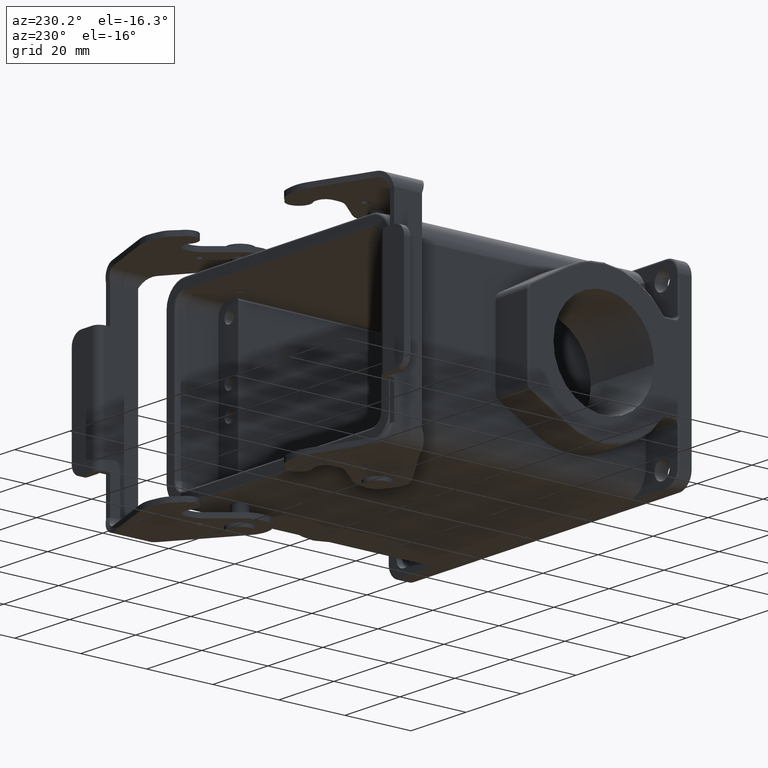
[diagram: clean part render]
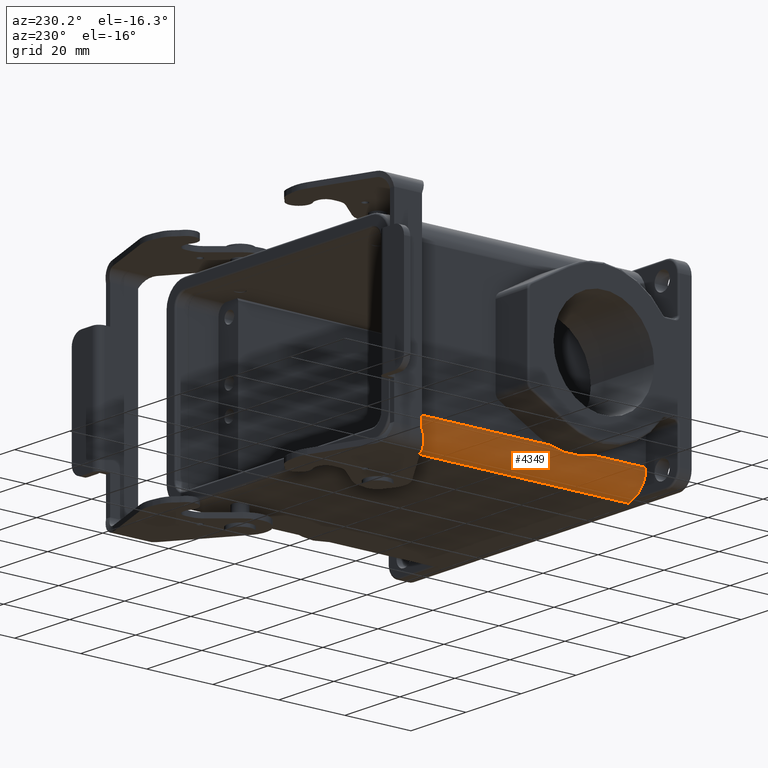
[diagram: same view with one face highlighted and labeled with its STEP entity id]
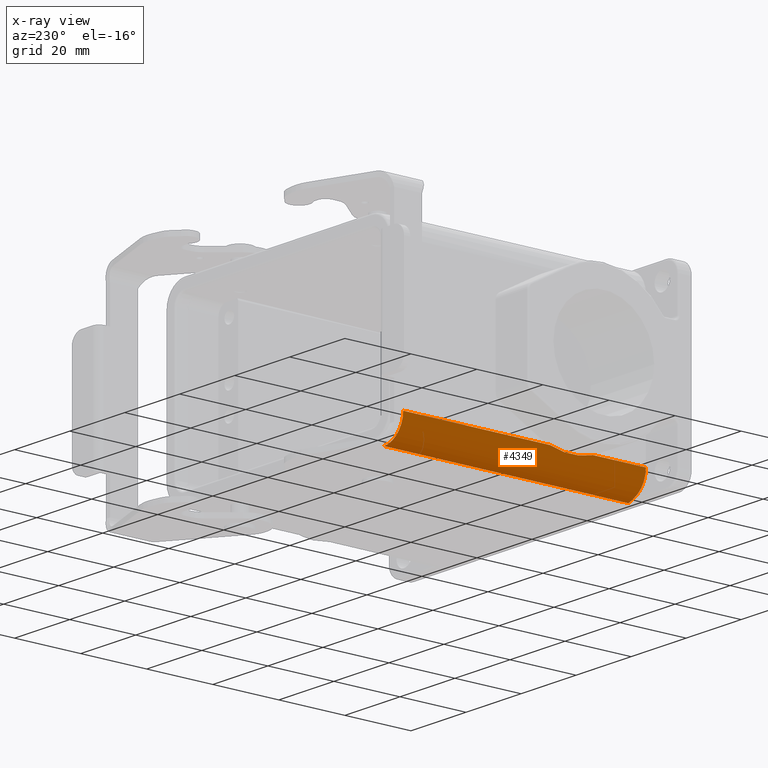
[diagram: x-ray of the same camera — body ghosted, the highlighted face saturated]
A machine part, auxiliary view. The second image highlights one B-rep face of the part: STEP entity #4349.
The next image is the same camera in x-ray: the body ghosted, the highlighted face saturated — about 0% of this face is hidden behind the body in this view.
In plain terms, the highlighted cylindrical surface (edge-blend (fillet) strip) has radius 7 mm, axis along (0, -1, 0).
Its self-contained STEP definition (entity closure, byte-faithful):
#321=CARTESIAN_POINT('',(-3.4E1,7.65E1,-2.1E1));
#322=DIRECTION('',(0.E0,1.E0,0.E0));
#323=DIRECTION('',(0.E0,0.E0,-1.E0));
#324=AXIS2_PLACEMENT_3D('',#321,#322,#323);
#1066=CARTESIAN_POINT('',(-3.4E1,2.500000000001E0,-2.8E1));
#1067=CARTESIAN_POINT('',(-3.433535744868E1,2.589628048221E0,-2.8E1));
#1068=CARTESIAN_POINT('',(-3.497660017636E1,2.760214822565E0,
-2.795192518038E1));
#1069=CARTESIAN_POINT('',(-3.584114300420E1,2.945900509257E0,
-2.777145938512E1));
#1070=CARTESIAN_POINT('',(-3.635766830173E1,3.000000000001E0,
-2.759609201093E1));
#1071=CARTESIAN_POINT('',(-3.659807621135E1,3.000000000001E0,-2.75E1));
#1081=DIRECTION('',(0.E0,1.E0,0.E0));
#1082=VECTOR('',#1081,7.4E1);
#1083=CARTESIAN_POINT('',(-3.4E1,2.500000000001E0,-2.8E1));
#1084=LINE('',#1083,#1082);
#1085=CARTESIAN_POINT('',(-4.1E1,3.210743483154E1,-2.100000119681E1));
#1086=CARTESIAN_POINT('',(-4.1E1,3.104765506618E1,-2.133092659212E1));
#1087=CARTESIAN_POINT('',(-4.095609555874E1,2.889990475631E1,
-2.182719009673E1));
#1088=CARTESIAN_POINT('',(-4.091429566281E1,2.554887756252E1,
-2.208614196217E1));
#1089=CARTESIAN_POINT('',(-4.095612662683E1,2.219902421715E1,
-2.182695704323E1));
#1090=CARTESIAN_POINT('',(-4.1E1,2.005192027041E1,-2.133079421732E1));
#1091=CARTESIAN_POINT('',(-4.1E1,1.899256268709E1,-2.100000042220E1));
#1108=DIRECTION('',(2.843492689596E-14,-1.E0,2.640004355405E-8));
#1109=VECTOR('',#1108,1.599256268709E1);
#1110=CARTESIAN_POINT('',(-4.1E1,1.899256268709E1,-2.100000042220E1));
#1111=LINE('',#1110,#1109);
#1368=CARTESIAN_POINT('',(-3.4E1,3.000000000004E0,-2.1E1));
#1369=DIRECTION('',(0.E0,1.E0,0.E0));
#1370=DIRECTION('',(-3.711537444786E-1,0.E0,-9.285714285716E-1));
#1371=AXIS2_PLACEMENT_3D('',#1368,#1369,#1370);
#1528=DIRECTION('',(-1.024377278404E-14,-1.E0,-2.695970950766E-8));
#1529=VECTOR('',#1528,4.439256516846E1);
#1530=CARTESIAN_POINT('',(-4.1E1,7.65E1,-2.1E1));
#1531=LINE('',#1530,#1529);
#2728=CARTESIAN_POINT('',(-4.1E1,7.65E1,-2.1E1));
#2729=VERTEX_POINT('',#2728);
#2730=CARTESIAN_POINT('',(-3.4E1,7.65E1,-2.8E1));
#2731=VERTEX_POINT('',#2730);
#2873=VERTEX_POINT('',#1066);
#2874=VERTEX_POINT('',#1071);
#2875=CARTESIAN_POINT('',(-4.1E1,1.899256268709E1,-2.100000042220E1));
#2876=CARTESIAN_POINT('',(-4.1E1,3.000000000001E0,-2.1E1));
#2877=VERTEX_POINT('',#2875);
#2878=VERTEX_POINT('',#2876);
#2879=CARTESIAN_POINT('',(-4.1E1,3.210743483154E1,-2.100000119681E1));
#2880=VERTEX_POINT('',#2879);
#4331=CARTESIAN_POINT('',(-3.4E1,7.798E1,-2.1E1));
#4332=DIRECTION('',(0.E0,-1.E0,0.E0));
#4333=DIRECTION('',(-1.E0,0.E0,0.E0));
#4334=AXIS2_PLACEMENT_3D('',#4331,#4332,#4333);
#4335=CYLINDRICAL_SURFACE('',#4334,7.E0);
#4337=ORIENTED_EDGE('',*,*,#4336,.T.);
#4339=ORIENTED_EDGE('',*,*,#4338,.F.);
#4340=ORIENTED_EDGE('',*,*,#4322,.F.);
#4341=ORIENTED_EDGE('',*,*,#3871,.T.);
#4342=ORIENTED_EDGE('',*,*,#3457,.T.);
#4344=ORIENTED_EDGE('',*,*,#4343,.T.);
#4346=ORIENTED_EDGE('',*,*,#4345,.T.);
#4347=EDGE_LOOP('',(#4337,#4339,#4340,#4341,#4342,#4344,#4346));
#4348=FACE_OUTER_BOUND('',#4347,.F.);
#4349=ADVANCED_FACE('',(#4348),#4335,.T.);
#325=CIRCLE('',#324,7.E0);
#1072=B_SPLINE_CURVE_WITH_KNOTS('',3,(#1066,#1067,#1068,#1069,#1070,#1071),
.UNSPECIFIED.,.F.,.F.,(4,1,1,4),(0.E0,3.333333333333E-1,6.666666666667E-1,1.E0),
.UNSPECIFIED.);
#1092=B_SPLINE_CURVE_WITH_KNOTS('',3,(#1085,#1086,#1087,#1088,#1089,#1090,
#1091),.UNSPECIFIED.,.F.,.F.,(4,1,1,1,4),(0.E0,2.5E-1,5.E-1,7.5E-1,1.E0),
.UNSPECIFIED.);
#1372=CIRCLE('',#1371,7.E0);
#3457=EDGE_CURVE('',#2731,#2729,#325,.T.);
#3871=EDGE_CURVE('',#2873,#2731,#1084,.T.);
#4322=EDGE_CURVE('',#2873,#2874,#1072,.T.);
#4336=EDGE_CURVE('',#2877,#2878,#1111,.T.);
#4338=EDGE_CURVE('',#2874,#2878,#1372,.T.);
#4343=EDGE_CURVE('',#2729,#2880,#1531,.T.);
#4345=EDGE_CURVE('',#2880,#2877,#1092,.T.);